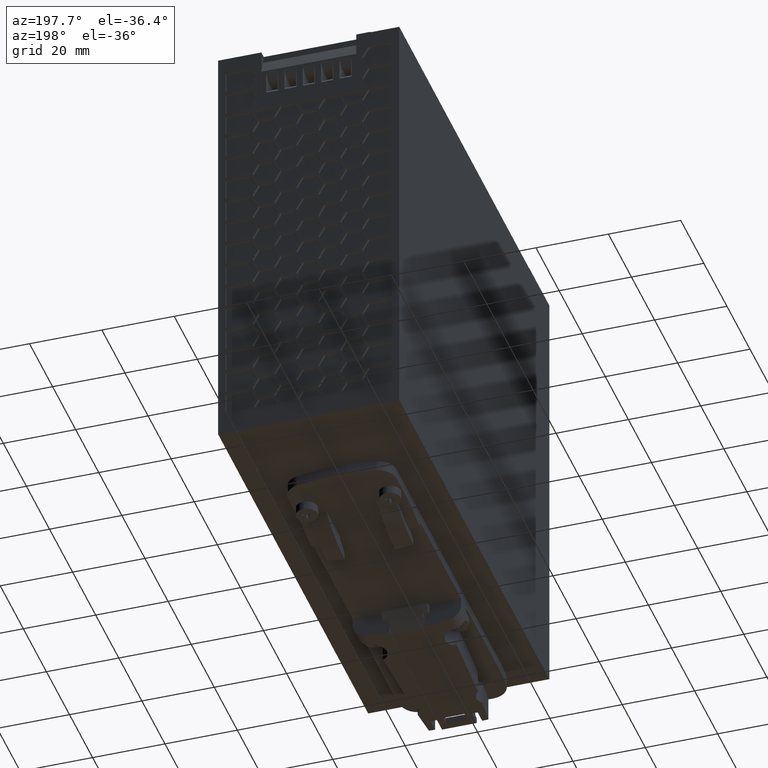
[diagram: clean part render]
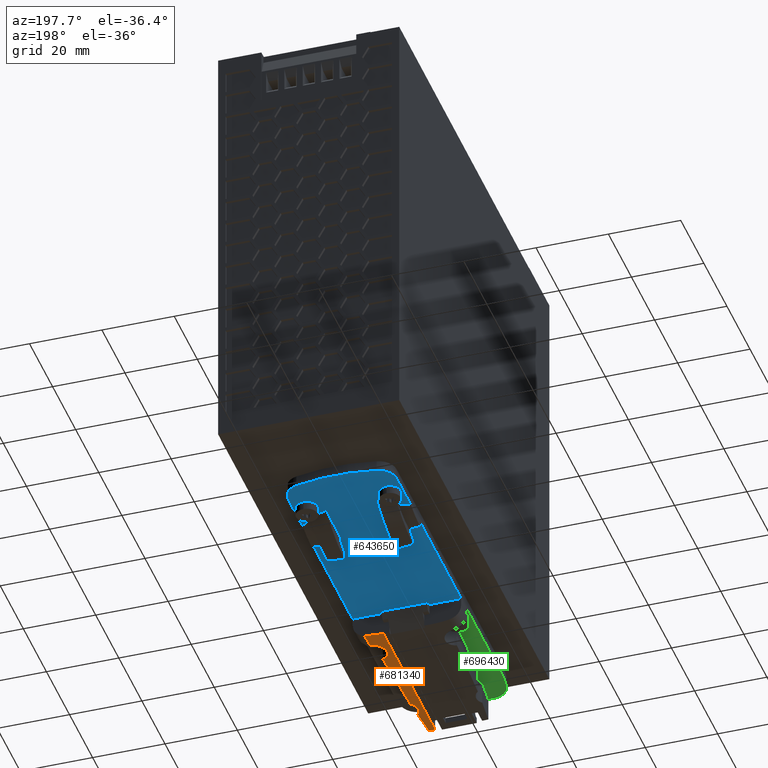
[diagram: same view with three faces highlighted in distinct colors, each labeled with its STEP entity id]
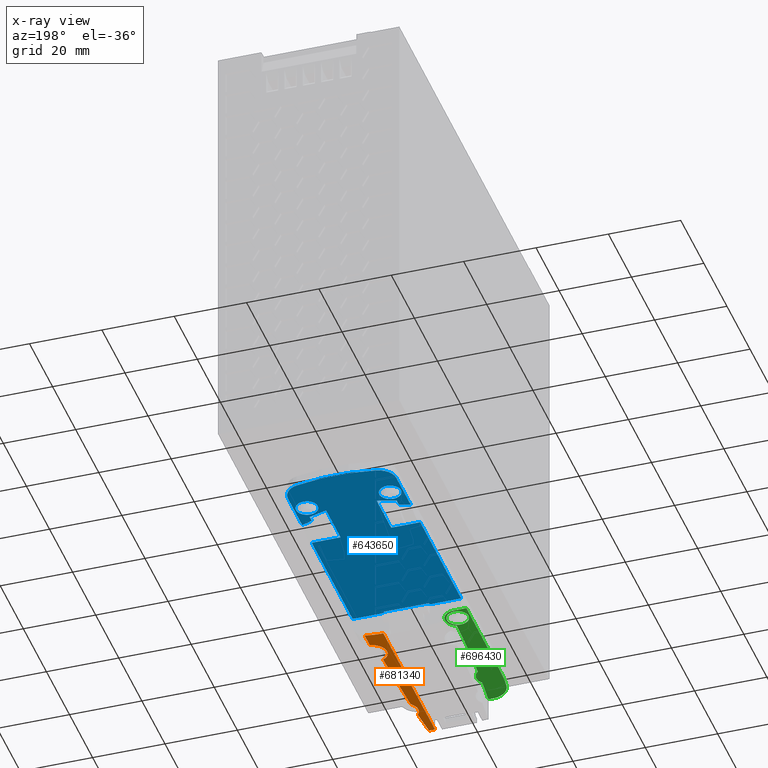
[diagram: x-ray of the same camera — body ghosted, the three highlighted faces saturated]
A machine part, auxiliary view with three faces highlighted in distinct colors.
The next image is the same camera in x-ray (body ghosted, the three faces saturated) — at least one of them is partly hidden behind the body in this view.
Their STEP definitions:

[orange] entity #681340 — the highlighted cylindrical surface (partial cylindrical patch) has radius 30 mm, axis along (0, -1, -0).
#637570=CARTESIAN_POINT('',(17.4426424999718,-9.69999999999984,
125.101093237187));
#637580=VERTEX_POINT('',#637570);
#670780=CARTESIAN_POINT('',(17.4420795676832,-9.69999999999984,
84.1510932410561));
#670790=VERTEX_POINT('',#670780);
#670820=CARTESIAN_POINT('',(17.4420795676832,20.3000000000002,
84.1510932410561));
#670830=DIRECTION('',(1.37468202359202E-5,1.32377063662335E-39,
0.999999999905512));
#670840=DIRECTION('',(0.999999999905512,-9.09881806515498E-45,
-1.37468202359202E-5));
#670850=AXIS2_PLACEMENT_3D('',#670820,#670830,#670840);
#670860=CIRCLE('',#670850,30.);
#670870=CARTESIAN_POINT('',(22.6343872595002,-9.24724929377342,
84.1510218633357));
#670880=VERTEX_POINT('',#670870);
#670890=EDGE_CURVE('',#670790,#670880,#670860,.T.);
#679150=CARTESIAN_POINT('',(19.1591798734071,-9.65085447025208,
129.001069640625));
#679160=VERTEX_POINT('',#679150);
#679190=CARTESIAN_POINT('',(17.4426961125707,20.3000000000002,
129.001093236818));
#679200=DIRECTION('',(1.37468202359202E-5,1.32377063662335E-39,
0.999999999905512));
#679210=DIRECTION('',(0.999999999905512,-9.09881806515498E-45,
-1.37468202359202E-5));
#679220=AXIS2_PLACEMENT_3D('',#679190,#679200,#679210);
#679230=CIRCLE('',#679220,30.);
#679240=CARTESIAN_POINT('',(17.4426961125707,-9.69999999999984,
129.001093236818));
#679250=VERTEX_POINT('',#679240);
#679260=EDGE_CURVE('',#679250,#679160,#679230,.T.);
#679660=CARTESIAN_POINT('',(17.4420795676832,-9.69999999999984,
84.1510932410561));
#679670=DIRECTION('',(1.37468202359202E-5,1.32377063662335E-39,
0.999999999905512));
#679680=VECTOR('',#679670,1.);
#679690=LINE('',#679660,#679680);
#679700=EDGE_CURVE('',#637580,#679250,#679690,.T.);
#680010=CARTESIAN_POINT('',(17.4420795676832,20.3000000000002,
84.1510932410561));
#680020=DIRECTION('',(1.37468202359202E-5,1.32377063662335E-39,
0.999999999905512));
#680030=DIRECTION('',(0.999999999905512,-9.09881806515498E-45,
-1.37468202359202E-5));
#680040=AXIS2_PLACEMENT_3D('',#680010,#680020,#680030);
#680050=CYLINDRICAL_SURFACE('',#680040,30.);
#680060=ORIENTED_EDGE('',*,*,#679260,.F.);
#680070=CARTESIAN_POINT('',(-380.257865407458,-3.0999999999999,
88.156560351086));
#680080=DIRECTION('',(9.09881891095558E-45,-1.,1.32377063662335E-39));
#680090=DIRECTION('',(-1.37468202359202E-5,-1.32377063662335E-39,
-0.999999999905512));
#680100=AXIS2_PLACEMENT_3D('',#680070,#680080,#680090);
#680110=CYLINDRICAL_SURFACE('',#680100,401.5);
#680120=CARTESIAN_POINT('',(19.8545853147473,-9.60288102418704,
121.507374090337));
#680130=CARTESIAN_POINT('',(19.8024870078922,-9.60708401167541,
122.132401755246));
#680140=CARTESIAN_POINT('',(19.7489243543159,-9.61126813362172,
122.757304670079));
#680150=CARTESIAN_POINT('',(19.6938982844759,-9.61540975810916,
123.382072692423));
#680160=CARTESIAN_POINT('',(19.6388722146266,-9.61955138259732,
124.006840714873));
#680170=CARTESIAN_POINT('',(19.5823827285437,-9.62365050926279,
124.631473844656));
#680180=CARTESIAN_POINT('',(19.5244308493157,-9.62768227136417,
125.255961958914));
#680190=CARTESIAN_POINT('',(19.4664789700819,-9.63171403346595,
125.880450073234));
#680200=CARTESIAN_POINT('',(19.407064697719,-9.63567843067104,
126.504793172019));
#680210=CARTESIAN_POINT('',(19.3461891477943,-9.63954936686505,
127.128981150951));
#680220=CARTESIAN_POINT('',(19.2853135978717,-9.64342030305891,
127.753169129863));
#680230=CARTESIAN_POINT('',(19.2229767703834,-9.64719777796471,
128.377201989093));
#680240=CARTESIAN_POINT('',(19.1591798734074,-9.65085447025247,
129.001069640621));
#680250=B_SPLINE_CURVE_WITH_KNOTS('',3,(#680120,#680130,#680140,#680150,
#680160,#680170,#680180,#680190,#680200,#680210,#680220,#680230,#680240)
,.UNSPECIFIED.,.F.,.F.,(4,3,3,3,4),(0.,1.88161596020836,3.76319436599584
,5.64471458201485,7.52615607688707),.UNSPECIFIED.);
#680260=SURFACE_CURVE('',#680250,(#680050,#680110),.CURVE_3D.);
#680270=CARTESIAN_POINT('',(19.8545853147479,-9.60288102418034,
121.507374090338));
#680280=VERTEX_POINT('',#680270);
#680290=EDGE_CURVE('',#680280,#679160,#680260,.T.);
#680300=ORIENTED_EDGE('',*,*,#680290,.T.);
#680310=CARTESIAN_POINT('',(22.442560705919,-3.09999999999985,
119.151024503648));
#680320=DIRECTION('',(9.09881891095558E-45,-1.,1.32377063662335E-39));
#680330=DIRECTION('',(0.999999999905512,-9.09881806515498E-45,
-1.37468202359202E-5));
#680340=AXIS2_PLACEMENT_3D('',#680310,#680320,#680330);
#680350=CYLINDRICAL_SURFACE('',#680340,3.5);
#680360=CARTESIAN_POINT('',(19.8545853147478,-9.60288102418046,
121.507374090338));
#680370=CARTESIAN_POINT('',(19.5349039163021,-9.62866641263549,
121.156268466255));
#680380=CARTESIAN_POINT('',(19.2875432597912,-9.64361997060973,
120.740182141705));
#680390=CARTESIAN_POINT('',(19.1320377359198,-9.65239089170769,
120.286998827789));
#680400=CARTESIAN_POINT('',(18.9776209334816,-9.66110040604948,
119.836988329698));
#680410=CARTESIAN_POINT('',(18.916527937544,-9.66379053106333,
119.358413646764));
#680420=CARTESIAN_POINT('',(18.9527244101105,-9.66196579864018,
118.884486272886));
#680430=CARTESIAN_POINT('',(18.9891727017768,-9.66012837154145,
118.407261783124));
#680440=CARTESIAN_POINT('',(19.1243009426728,-9.65364315802381,
117.940922780012));
#680450=CARTESIAN_POINT('',(19.3453094623561,-9.63959688932203,
117.520983174648));
#680460=CARTESIAN_POINT('',(19.5683226588239,-9.62542321273201,
117.097234470979));
#680470=CARTESIAN_POINT('',(19.8766344348609,-9.60338606044091,
116.723942419828));
#680480=CARTESIAN_POINT('',(20.2456504777323,-9.56875420484563,
116.426398758835));
#680490=B_SPLINE_CURVE_WITH_KNOTS('',3,(#680360,#680370,#680380,#680390,
#680400,#680410,#680420,#680430,#680440,#680450,#680460,#680470,#680480)
,.UNSPECIFIED.,.F.,.F.,(4,3,3,3,4),(0.,1.42905439128157,2.85283973389681
,4.28184927705032,5.71087819009123),.UNSPECIFIED.);
#680500=SURFACE_CURVE('',#680490,(#680050,#680350),.CURVE_3D.);
#680510=CARTESIAN_POINT('',(20.2456504777329,-9.56875420484524,
116.426398758836));
#680520=VERTEX_POINT('',#680510);
#680530=EDGE_CURVE('',#680280,#680520,#680500,.T.);
#680540=ORIENTED_EDGE('',*,*,#680530,.F.);
#680550=CARTESIAN_POINT('',(-380.257865407458,-3.0999999999999,
88.156560351086));
#680560=DIRECTION('',(9.09881891095558E-45,-1.,1.32377063662335E-39));
#680570=DIRECTION('',(-1.37468202359202E-5,-1.32377063662335E-39,
-0.999999999905512));
#680580=AXIS2_PLACEMENT_3D('',#680550,#680560,#680570);
#680590=CYLINDRICAL_SURFACE('',#680580,401.5);
#680600=CARTESIAN_POINT('',(21.1765340989952,-9.46667609516908,
95.4141696608264));
#680610=CARTESIAN_POINT('',(21.1448481860299,-9.47065419017257,
97.1667874859514));
#680620=CARTESIAN_POINT('',(21.1016844967925,-9.47602742559005,
98.9191954383777));
#680630=CARTESIAN_POINT('',(21.0470473730936,-9.48264334216385,
100.671230869743));
#680640=CARTESIAN_POINT('',(20.9924096719774,-9.48925932865614,
102.423284817012));
#680650=CARTESIAN_POINT('',(20.9262957907096,-9.49711826358038,
104.175037623851));
#680660=CARTESIAN_POINT('',(20.8487135173032,-9.50598739389538,
105.926263310735));
#680670=CARTESIAN_POINT('',(20.7711308177536,-9.51485657292667,
107.677498616736));
#680680=CARTESIAN_POINT('',(20.682081957681,-9.52473561714494,
109.42816520607));
#680690=CARTESIAN_POINT('',(20.5815739919311,-9.53531309531287,
111.178155039189));
#680700=CARTESIAN_POINT('',(20.481063988738,-9.54589078790172,
112.928180347156));
#680710=CARTESIAN_POINT('',(20.3690858547188,-9.557167767417,
114.677669185134));
#680720=CARTESIAN_POINT('',(20.2456504777328,-9.56875420484555,
116.426398758839));
#680730=B_SPLINE_CURVE_WITH_KNOTS('',3,(#680600,#680610,#680620,#680630,
#680640,#680650,#680660,#680670,#680680,#680690,#680700,#680710,#680720)
,.UNSPECIFIED.,.F.,.F.,(4,3,3,3,4),(0.,5.25871798684735,10.5175815892292
,15.776382571854,21.035509994096),.UNSPECIFIED.);
#680740=SURFACE_CURVE('',#680730,(#680050,#680590),.CURVE_3D.);
#680750=CARTESIAN_POINT('',(21.1765340989955,-9.4666760951657,
95.4141696608265));
#680760=VERTEX_POINT('',#680750);
#680770=EDGE_CURVE('',#680760,#680520,#680740,.T.);
#680780=ORIENTED_EDGE('',*,*,#680770,.T.);
#680790=CARTESIAN_POINT('',(22.4421895417726,-3.09999999999985,
92.151024506199));
#680800=DIRECTION('',(9.09881891095558E-45,-1.,1.32377063662335E-39));
#680810=DIRECTION('',(0.999999999905512,-9.09881806515498E-45,
-1.37468202359202E-5));
#680820=AXIS2_PLACEMENT_3D('',#680790,#680800,#680810);
#680830=CYLINDRICAL_SURFACE('',#680820,3.5);
#680840=CARTESIAN_POINT('',(21.1765340989956,-9.46667609516569,
95.4141696608265));
#680850=CARTESIAN_POINT('',(20.7922322283521,-9.51488741387449,
95.2651129283795));
#680860=CARTESIAN_POINT('',(20.4383809564112,-9.55164070013351,
95.050409580819));
#680870=CARTESIAN_POINT('',(20.127577527976,-9.57957304238252,
94.7763951896641));
#680880=CARTESIAN_POINT('',(19.8161400152476,-9.60756237068081,
94.5018217692142));
#680890=CARTESIAN_POINT('',(19.5576810508436,-9.62596697810996,
94.176043833834));
#680900=CARTESIAN_POINT('',(19.3613910521861,-9.63854961752515,
93.8119521586155));
#680910=CARTESIAN_POINT('',(18.9799996648336,-9.66299768077819,
93.1045221821276));
#680920=CARTESIAN_POINT('',(18.8541178283766,-9.66712914343472,
92.2866490114067));
#680930=CARTESIAN_POINT('',(19.0034547405954,-9.65934617095079,
91.499025298245));
#680940=CARTESIAN_POINT('',(19.153099005127,-9.65154718022623,
90.7097805660984));
#680950=CARTESIAN_POINT('',(19.5731404873586,-9.63049825796521,
89.9929843477973));
#680960=CARTESIAN_POINT('',(20.183597284804,-9.57447877474151,
89.4773078015415));
#680970=CARTESIAN_POINT('',(20.4996241236471,-9.54547809808283,
89.2103476669985));
#680980=CARTESIAN_POINT('',(20.8629751694179,-9.50683257970101,
89.0010340145082));
#680990=CARTESIAN_POINT('',(21.2462977918575,-9.45782949728181,
88.8616715420909));
#681000=CARTESIAN_POINT('',(21.6309512353785,-9.4086562857564,
88.7218252304599));
#681010=CARTESIAN_POINT('',(22.0366647448211,-9.34893403224273,
88.6510543377072));
#681020=CARTESIAN_POINT('',(22.4419319903835,-9.28043431618564,
88.6510245156674));
#681030=B_SPLINE_CURVE_WITH_KNOTS('',3,(#680840,#680850,#680860,#680870,
#680880,#680890,#680900,#680910,#680920,#680930,#680940,#680950,#680960,
#680970,#680980,#680990,#681000,#681010,#681020),.UNSPECIFIED.,.F.,.F.,(
4,3,3,3,3,3,4),(0.,1.23928390105495,2.4789466967372,4.86560860602107,
7.25439560188893,8.49455414880313,9.72771766417829),.UNSPECIFIED.);
#681040=SURFACE_CURVE('',#681030,(#680050,#680830),.CURVE_3D.);
#681050=CARTESIAN_POINT('',(22.4419319903839,-9.28043431618559,
88.6510245156674));
#681060=VERTEX_POINT('',#681050);
#681070=EDGE_CURVE('',#680760,#681060,#681040,.T.);
#681080=ORIENTED_EDGE('',*,*,#681070,.F.);
#681090=CARTESIAN_POINT('',(17.4421414283742,20.3000000000002,
88.6510932406309));
#681100=DIRECTION('',(1.37468202359202E-5,1.32377063662335E-39,
0.999999999905512));
#681110=DIRECTION('',(0.999999999905512,-9.09881806515498E-45,
-1.37468202359202E-5));
#681120=AXIS2_PLACEMENT_3D('',#681090,#681100,#681110);
#681130=CIRCLE('',#681120,30.);
#681140=CARTESIAN_POINT('',(22.6344491201913,-9.24724929377342,
88.6510218629105));
#681150=VERTEX_POINT('',#681140);
#681160=EDGE_CURVE('',#681060,#681150,#681130,.T.);
#681170=ORIENTED_EDGE('',*,*,#681160,.F.);
#681180=CARTESIAN_POINT('',(22.6343872595002,-9.24724929377342,
84.1510218633357));
#681190=DIRECTION('',(1.37468202359202E-5,1.32377063662335E-39,
0.999999999905512));
#681200=VECTOR('',#681190,1.);
#681210=LINE('',#681180,#681200);
#681220=EDGE_CURVE('',#670880,#681150,#681210,.T.);
#681230=ORIENTED_EDGE('',*,*,#681220,.T.);
#681240=ORIENTED_EDGE('',*,*,#670890,.T.);
#681250=CARTESIAN_POINT('',(17.4420795676832,-9.69999999999984,
84.1510932410561));
#681260=DIRECTION('',(1.37468202359202E-5,1.32377063662335E-39,
0.999999999905512));
#681270=VECTOR('',#681260,1.);
#681280=LINE('',#681250,#681270);
#681290=EDGE_CURVE('',#670790,#637580,#681280,.T.);
#681300=ORIENTED_EDGE('',*,*,#681290,.F.);
#681310=ORIENTED_EDGE('',*,*,#679700,.F.);
#681320=EDGE_LOOP('',(#681310,#681300,#681240,#681230,#681170,#681080,
#680780,#680540,#680300,#680060));
#681330=FACE_OUTER_BOUND('',#681320,.T.);
#681340=ADVANCED_FACE('',(#681330),#680050,.T.);

[blue] entity #643650 — the highlighted planar face has unit normal (0, 0, -1).
#631310=CARTESIAN_POINT('',(25.9418052853024,-3.09999999999985,
64.1986112001693));
#631320=DIRECTION('',(1.37468202359202E-5,1.32377063662335E-39,
0.999999999905512));
#631330=VECTOR('',#631320,1.);
#631340=LINE('',#631310,#631330);
#631350=CARTESIAN_POINT('',(25.9413094037241,-3.09999999999985,
28.1261544614171));
#631360=VERTEX_POINT('',#631350);
#631370=CARTESIAN_POINT('',(25.9414793452855,-3.09999999999985,
40.4883995839968));
#631380=VERTEX_POINT('',#631370);
#631390=EDGE_CURVE('',#631360,#631380,#631340,.T.);
#631460=CARTESIAN_POINT('',(36.3193585013691,-1.70441604344119,
59.4406801922906));
#631470=CARTESIAN_POINT('',(32.8323204957959,-2.66315462780622,
59.4277075588657));
#631480=CARTESIAN_POINT('',(29.3452824902228,-3.62189321217125,
59.4147349254408));
#631490=CARTESIAN_POINT('',(24.8817762359095,-4.84910543662229,
59.3981295915344));
#631500=CARTESIAN_POINT('',(23.9019961303888,-5.05962099943143,
59.3945211057544));
#631510=CARTESIAN_POINT('',(19.3826572457611,-5.83586521223752,
59.378843498032));
#631520=CARTESIAN_POINT('',(15.8051067509578,-6.4503473164804,
59.3664329586376));
#631530=CARTESIAN_POINT('',(12.2275562561544,-7.06482942072328,
59.3540224192431));
#631540=CARTESIAN_POINT('',(36.4066753815092,-2.02158789203813,
55.3586401281275));
#631550=CARTESIAN_POINT('',(32.8755958065553,-2.86380690771618,
55.4690452929722));
#631560=CARTESIAN_POINT('',(29.3445162316014,-3.70602592339425,
55.5794504578168));
#631570=CARTESIAN_POINT('',(24.8819470597037,-4.77042012227036,
55.7189802176525));
#631580=CARTESIAN_POINT('',(23.902810311974,-4.95735439245213,
55.7484782278536));
#631590=CARTESIAN_POINT('',(19.3862509391903,-5.65403637972801,
55.8780881933442));
#631600=CARTESIAN_POINT('',(15.794851770286,-6.20801185167029,
55.9811491926415));
#631610=CARTESIAN_POINT('',(12.2034526013818,-6.76198732361257,
56.0842101919389));
#631620=CARTESIAN_POINT('',(36.4702435057048,-2.35008544179697,
51.2719052513831));
#631630=CARTESIAN_POINT('',(32.9069967393424,-3.0701220382071,
51.508035620788));
#631640=CARTESIAN_POINT('',(29.34374997298,-3.79015863461722,
51.7441659901928));
#631650=CARTESIAN_POINT('',(24.8821178834979,-4.69173480791843,
52.0398308437707));
#631660=CARTESIAN_POINT('',(23.9036244935591,-4.85508778547281,
52.1024353499528));
#631670=CARTESIAN_POINT('',(19.3898446326195,-5.47220754721855,
52.3773328886564));
#631680=CARTESIAN_POINT('',(15.791553959415,-5.96416248329236,
52.5964754432511));
#631690=CARTESIAN_POINT('',(12.1932632862104,-6.45611741936619,
52.8156179978457));
#631700=CARTESIAN_POINT('',(36.5898758105418,-2.96885470264525,
46.2360246331352));
#631710=CARTESIAN_POINT('',(32.9661377644386,-3.45896317019364,
46.0141789739853));
#631720=CARTESIAN_POINT('',(29.3423997183354,-3.94907163774202,
45.7923333148355));
#631730=CARTESIAN_POINT('',(24.8824206336505,-4.55228122041133,
45.519292883312));
#631740=CARTESIAN_POINT('',(23.9051074567425,-4.66881777420783,
45.4614753337804));
#631750=CARTESIAN_POINT('',(19.3967014987251,-5.11477929631874,
45.2075846671564));
#631760=CARTESIAN_POINT('',(15.7713536426015,-5.47339066875367,
45.0034233754479));
#631770=CARTESIAN_POINT('',(12.1460057864779,-5.8320020411886,
44.7992620837394));
#631780=CARTESIAN_POINT('',(36.5465123668367,-2.8222892265708,
44.2378449932929));
#631790=CARTESIAN_POINT('',(32.9367310699919,-3.19199532570333,
43.7282812503561));
#631800=CARTESIAN_POINT('',(29.3269497731472,-3.56170142483587,
43.2187175074193));
#631810=CARTESIAN_POINT('',(24.8871854085029,-4.0164126190445,
42.5919917416829));
#631820=CARTESIAN_POINT('',(23.9129110398295,-4.104183160059,
42.4653135332097));
#631830=CARTESIAN_POINT('',(19.4123664588793,-4.43934325728173,
41.9342681638217));
#631840=CARTESIAN_POINT('',(15.801185877647,-4.70827151983414,
41.5081640132698));
#631850=CARTESIAN_POINT('',(12.1900052964147,-4.97719978238656,
41.0820598627178));
#631860=CARTESIAN_POINT('',(36.235839679127,-1.54931680142654,
39.9898420969367));
#631870=CARTESIAN_POINT('',(32.7659854066738,-1.63722363528622,
38.9343143138453));
#631880=CARTESIAN_POINT('',(29.2961311342206,-1.72513046914591,
37.8787865307539));
#631890=CARTESIAN_POINT('',(24.8966866071618,-1.83658795662179,
36.5404778976375));
#631900=CARTESIAN_POINT('',(23.9283153141583,-1.85819126234517,
36.273976581726));
#631910=CARTESIAN_POINT('',(19.4426421394941,-1.9430079972902,
35.1711188742165));
#631920=CARTESIAN_POINT('',(15.9313601130721,-2.00940059107845,
34.3078271685364));
#631930=CARTESIAN_POINT('',(12.4200780866502,-2.07579318486669,
33.4445354628563));
#631940=CARTESIAN_POINT('',(36.3636606241177,-0.225557747270857,
36.0057067595766));
#631950=CARTESIAN_POINT('',(32.8210815794036,-0.336535036818349,
35.0967178210701));
#631960=CARTESIAN_POINT('',(29.2785025346895,-0.447512326365834,
34.1877288825636));
#631970=CARTESIAN_POINT('',(24.9021436052627,-0.584609183188102,
33.0648006973142));
#631980=CARTESIAN_POINT('',(23.9368589602794,-0.612500647171688,
32.8400860393378));
#631990=CARTESIAN_POINT('',(19.4580113366154,-0.734077769296187,
31.9022070324896));
#632000=CARTESIAN_POINT('',(15.9033243317519,-0.830568798332601,
31.1578489748135));
#632010=CARTESIAN_POINT('',(12.3486373268885,-0.927059827369016,
30.4134909171374));
#632020=CARTESIAN_POINT('',(36.4738787075001,1.099745943859,
32.0004008791571));
#632030=CARTESIAN_POINT('',(32.8673763213292,0.96492588013661,
31.2485360567652));
#632040=CARTESIAN_POINT('',(29.2608739351584,0.830105816414216,
30.4966712343733));
#632050=CARTESIAN_POINT('',(24.9076006033635,0.66736959024559,
29.5891234969909));
#632060=CARTESIAN_POINT('',(23.9454026064005,0.633189968001792,
29.4061954969497));
#632070=CARTESIAN_POINT('',(19.4733805337366,0.474852458697837,
28.6332951907627));
#632080=CARTESIAN_POINT('',(15.881486695656,0.347676985329221,
28.0125075912976));
#632090=CARTESIAN_POINT('',(12.2895928575754,0.220501511960611,
27.3917199918326));
#632100=B_SPLINE_SURFACE_WITH_KNOTS('',3,3,((#631460,#631540,#631620,
#631700,#631780,#631860,#631940,#632020),(#631470,#631550,#631630,
#631710,#631790,#631870,#631950,#632030),(#631480,#631560,#631640,
#631720,#631800,#631880,#631960,#632040),(#631490,#631570,#631650,
#631730,#631810,#631890,#631970,#632050),(#631500,#631580,#631660,
#631740,#631820,#631900,#631980,#632060),(#631510,#631590,#631670,
#631750,#631830,#631910,#631990,#632070),(#631520,#631600,#631680,
#631760,#631840,#631920,#632000,#632080),(#631530,#631610,#631690,
#631770,#631850,#631930,#632010,#632090)),.UNSPECIFIED.,.F.,.F.,.F.,(4,2
,2,4),(4,2,2,4),(-1.04425037197643,0.00840241999769925,0.303174667007196
,1.36540567626834),(-0.672680963199468,0.00647129604993427,
0.596721513342289,1.28419559916893),.UNSPECIFIED.);
#632340=CARTESIAN_POINT('',(25.9415915547616,-3.09999999999985,
48.6509763964384));
#632350=VERTEX_POINT('',#632340);
#632380=CARTESIAN_POINT('',(25.94207956688,-3.09999999999985,
84.1509763930841));
#632390=VERTEX_POINT('',#632380);
#632400=EDGE_CURVE('',#632350,#632390,#631340,.T.);
#633400=CARTESIAN_POINT('',(17.9415915555175,-3.09999999999985,
48.6510863710003));
#633410=VERTEX_POINT('',#633400);
#633440=CARTESIAN_POINT('',(35.9415915538168,-3.09999999999985,
48.650838928236));
#633450=DIRECTION('',(0.999999999905512,-9.09881806515498E-45,
-1.37468202359202E-5));
#633460=VECTOR('',#633450,1.);
#633470=LINE('',#633440,#633460);
#633480=EDGE_CURVE('',#633410,#632350,#633470,.T.);
#633650=CARTESIAN_POINT('',(28.3747466823235,-6.07193078061609,
57.3078563919651));
#633660=CARTESIAN_POINT('',(26.5085716220692,-6.48936042862193,
57.3061837966497));
#633670=CARTESIAN_POINT('',(24.6423965618148,-6.90679007662779,
57.3045112013343));
#633680=CARTESIAN_POINT('',(21.2496247253607,-7.66569184507289,
57.3014703642762));
#633690=CARTESIAN_POINT('',(19.6327876048831,-7.91225648277388,
57.300278934589));
#633700=CARTESIAN_POINT('',(16.1941039240052,-8.2731262918686,
57.2978978169979));
#633710=CARTESIAN_POINT('',(14.29229467015,-8.47271008789782,
57.2965809085848));
#633720=CARTESIAN_POINT('',(12.3904854162949,-8.67229388392702,
57.2952640001718));
#633730=CARTESIAN_POINT('',(28.3956373941771,-6.15724139880369,
55.248837512019));
#633740=CARTESIAN_POINT('',(26.5189625505002,-6.54111271368932,
55.2800416398523));
#633750=CARTESIAN_POINT('',(24.6422877068234,-6.92498402857495,
55.3112457676857));
#633760=CARTESIAN_POINT('',(21.2496782322892,-7.61893773305972,
55.3676558698878));
#633770=CARTESIAN_POINT('',(19.6335995504535,-7.85151923842788,
55.3931974125471));
#633780=CARTESIAN_POINT('',(16.1956279601823,-8.19073841994543,
55.4425551720991));
#633790=CARTESIAN_POINT('',(14.2921389865192,-8.37855264549077,
55.4698828996864));
#633800=CARTESIAN_POINT('',(12.3886500128561,-8.56636687103612,
55.4972106272737));
#633810=CARTESIAN_POINT('',(28.4131552705299,-6.24398788001157,
53.1891915156129));
#633820=CARTESIAN_POINT('',(26.527667061181,-6.59358293026684,
53.253585924825));
#633830=CARTESIAN_POINT('',(24.642178851832,-6.94317798052213,
53.3179803340371));
#633840=CARTESIAN_POINT('',(21.2497317392178,-7.57218362104654,
53.4338413754994));
#633850=CARTESIAN_POINT('',(19.6344114960238,-7.79078199408189,
53.4861158905053));
#633860=CARTESIAN_POINT('',(16.1971519963595,-8.10835054802222,
53.5872125272003));
#633870=CARTESIAN_POINT('',(14.2927219212797,-8.28430092508354,
53.6432256025675));
#633880=CARTESIAN_POINT('',(12.3882918462,-8.46025130214486,
53.6992386779347));
#633890=CARTESIAN_POINT('',(28.4487503746589,-6.45036189252249,
49.4194998418295));
#633900=CARTESIAN_POINT('',(26.545344094778,-6.71903220769434,
49.3251773442024));
#633910=CARTESIAN_POINT('',(24.6419378148971,-6.98770252286618,
49.2308548465753));
#633920=CARTESIAN_POINT('',(21.2498526831136,-7.46650339217036,
49.0627614945803));
#633930=CARTESIAN_POINT('',(19.6363270404293,-7.64749050650361,
48.986923489386));
#633940=CARTESIAN_POINT('',(16.2009729384182,-7.90004534760166,
48.8402666694121));
#633950=CARTESIAN_POINT('',(14.2930055098128,-8.0403122302702,
48.7588146771621));
#633960=CARTESIAN_POINT('',(12.3850380812074,-8.18057911293872,
48.6773626849122));
#633970=CARTESIAN_POINT('',(28.4023495782821,-6.04829819696226,
45.294906487934));
#633980=CARTESIAN_POINT('',(26.5166592817929,-6.2131075275444,
44.9570380514177));
#633990=CARTESIAN_POINT('',(24.6309689853036,-6.37791685812655,
44.6191696149013));
#634000=CARTESIAN_POINT('',(21.2606424451914,-6.6724833953534,
44.0152915757675));
#634010=CARTESIAN_POINT('',(19.6524433361679,-6.78591233526711,
43.767097806131));
#634020=CARTESIAN_POINT('',(16.2174617495531,-6.93921185831042,
43.3313502577871));
#634030=CARTESIAN_POINT('',(14.3244506339923,-7.02369490248801,
43.0912107019282));
#634040=CARTESIAN_POINT('',(12.4314395184314,-7.1081779466656,
42.8510711460692));
#634050=CARTESIAN_POINT('',(28.2640579666881,-4.37137928671241,
41.4700288963112));
#634060=CARTESIAN_POINT('',(26.4410323397651,-4.41269459471098,
40.9130370511611));
#634070=CARTESIAN_POINT('',(24.6180067128421,-4.45400990270954,
40.356045206011));
#634080=CARTESIAN_POINT('',(21.2734288589955,-4.529808214108,
39.3341711508412));
#634090=CARTESIAN_POINT('',(19.6704842349988,-4.55892010890649,
38.9214168668433));
#634100=CARTESIAN_POINT('',(16.2347686836153,-4.60628942507581,
38.2045650715458));
#634110=CARTESIAN_POINT('',(14.376567227357,-4.63190904665722,
37.8168568838273));
#634120=CARTESIAN_POINT('',(12.5183657710987,-4.65752866823862,
37.4291486961088));
#634130=CARTESIAN_POINT('',(28.1209033835901,-2.2984814082195,
38.2696376604581));
#634140=CARTESIAN_POINT('',(26.3672939447494,-2.27340280328271,
37.5813191563424));
#634150=CARTESIAN_POINT('',(24.6136845059086,-2.24832419834591,
36.8930006522268));
#634160=CARTESIAN_POINT('',(21.2776344016716,-2.20061489617154,
35.5835500034432));
#634170=CARTESIAN_POINT('',(19.6764113125818,-2.18229146073094,
35.0505313624909));
#634180=CARTESIAN_POINT('',(16.2404189123336,-2.15248573584879,
34.1030004158095));
#634190=CARTESIAN_POINT('',(14.4242498107869,-2.13673126660833,
33.602162163665));
#634200=CARTESIAN_POINT('',(12.6080807092402,-2.12097679736788,
33.1013239115205));
#634210=CARTESIAN_POINT('',(28.1428966562635,-1.17379962331364,
36.5528605319237));
#634220=CARTESIAN_POINT('',(26.3773484075323,-1.17569003400325,
35.8812260920375));
#634230=CARTESIAN_POINT('',(24.611800158801,-1.17758044469284,
35.2095916521514));
#634240=CARTESIAN_POINT('',(21.2794751289599,-1.18114843716324,
33.941937677504));
#634250=CARTESIAN_POINT('',(19.6788992525849,-1.18468186249413,
33.4256950483355));
#634260=CARTESIAN_POINT('',(16.2426069016885,-1.19896955720663,
32.5074821394103));
#634270=CARTESIAN_POINT('',(14.4205437390559,-1.20654547903056,
32.0206079896106));
#634280=CARTESIAN_POINT('',(12.5984805764233,-1.2141214008545,
31.5337338398108));
#634290=CARTESIAN_POINT('',(28.1634221080619,-0.0482856258175648,
34.8348684942089));
#634300=CARTESIAN_POINT('',(26.3866689598777,-0.0775611584286739,
34.1805255731424));
#634310=CARTESIAN_POINT('',(24.6099158116935,-0.106836691039769,
33.526182652076));
#634320=CARTESIAN_POINT('',(21.2813158562482,-0.16168197815494,
32.3003253515649));
#634330=CARTESIAN_POINT('',(19.681387192588,-0.187072264257319,
31.80085873418));
#634340=CARTESIAN_POINT('',(16.2447948910435,-0.24545337856445,
30.9119638630112));
#634350=CARTESIAN_POINT('',(14.4174090680928,-0.276497160093315,
30.4392997402006));
#634360=CARTESIAN_POINT('',(12.5900232451421,-0.307540941622173,
29.9666356173899));
#634370=B_SPLINE_SURFACE_WITH_KNOTS('',3,3,((#633650,#633730,#633810,
#633890,#633970,#634050,#634130,#634210,#634290),(#633660,#633740,
#633820,#633900,#633980,#634060,#634140,#634220,#634300),(#633670,
#633750,#633830,#633910,#633990,#634070,#634150,#634230,#634310),(
#633680,#633760,#633840,#633920,#634000,#634080,#634160,#634240,#634320)
,(#633690,#633770,#633850,#633930,#634010,#634090,#634170,#634250,
#634330),(#633700,#633780,#633860,#633940,#634020,#634100,#634180,
#634260,#634340),(#633710,#633790,#633870,#633950,#634030,#634110,
#634190,#634270,#634350),(#633720,#633800,#633880,#633960,#634040,
#634120,#634200,#634280,#634360)),.UNSPECIFIED.,.F.,.F.,.F.,(4,2,2,4),(4
,2,1,2,4),(-0.530299195767868,0.0083302807718563,0.494384454739451,
1.03935536184108),(-0.34261094403884,2.36588213699451E-9,0.4974044135323
,0.994808800538165,1.33311810925078),.UNSPECIFIED.);
#634530=CARTESIAN_POINT('',(22.9414400437489,-3.10000000000189,
37.6294654799158));
#634540=VERTEX_POINT('',#634530);
#634890=CARTESIAN_POINT('',(22.9414642778592,-3.09999999999985,
39.3923539057522));
#634900=VERTEX_POINT('',#634890);
#634930=CARTESIAN_POINT('',(22.9418052855859,-3.09999999999985,
64.19865244063));
#634940=DIRECTION('',(-1.37468202359202E-5,-1.32377063662335E-39,
-0.999999999905512));
#634950=VECTOR('',#634940,1.);
#634960=LINE('',#634930,#634950);
#634970=EDGE_CURVE('',#634900,#634540,#634960,.T.);
#635100=CARTESIAN_POINT('',(5.71649123326192,-3.09999999999985,
41.3533186847772));
#635110=DIRECTION('',(9.09881891095558E-45,-1.,1.32377063662335E-39));
#635120=DIRECTION('',(-0.999999999905512,9.09881806515498E-45,
1.37468202359202E-5));
#635130=AXIS2_PLACEMENT_3D('',#635100,#635110,#635120);
#635140=PLANE('',#635130);
#635150=CARTESIAN_POINT('',(17.9414191873363,-3.09999999999985,
36.1123189837089));
#635160=CARTESIAN_POINT('',(18.3639489206056,-3.09999999999985,
36.2178843019423));
#635170=CARTESIAN_POINT('',(18.7854280869795,-3.09999999999985,
36.3271118622867));
#635180=CARTESIAN_POINT('',(19.2055405880197,-3.09999999999985,
36.442770458032));
#635190=CARTESIAN_POINT('',(19.6255560077205,-3.09999999999985,
36.5584023269093));
#635200=CARTESIAN_POINT('',(20.0441334306676,-3.09999999999985,
36.6795381214909));
#635210=CARTESIAN_POINT('',(20.4610695509796,-3.09999999999985,
36.8060914559919));
#635220=CARTESIAN_POINT('',(20.8780056687605,-3.09999999999985,
36.9326447897246));
#635230=CARTESIAN_POINT('',(21.2932996565662,-3.09999999999985,
37.0646153880444));
#635240=CARTESIAN_POINT('',(21.7067547332634,-3.09999999999985,
37.201895298422));
#635250=CARTESIAN_POINT('',(22.1202841848039,-3.09999999999985,
37.3391999035547));
#635260=CARTESIAN_POINT('',(22.5315330760438,-3.09999999999985,
37.4823669650691));
#635270=CARTESIAN_POINT('',(22.9414400437489,-3.09999999999985,
37.6294654799125));
#635280=B_SPLINE_CURVE_WITH_KNOTS('',3,(#635150,#635160,#635170,#635180,
#635190,#635200,#635210,#635220,#635230,#635240,#635250,#635260,#635270)
,.UNSPECIFIED.,.F.,.F.,(4,3,3,3,4),(0.,1.30662994483356,2.613707486062,
3.92079877700267,5.22745320657135),.UNSPECIFIED.);
#635290=SURFACE_CURVE('',#635280,(#635140,#634370),.CURVE_3D.);
#635300=CARTESIAN_POINT('',(17.9414191873362,-3.10000000000198,
36.1123189837126));
#635310=VERTEX_POINT('',#635300);
#635320=EDGE_CURVE('',#635310,#634540,#635290,.T.);
#635900=CARTESIAN_POINT('',(17.9418052860583,-3.09999999999985,
64.1987211747312));
#635910=DIRECTION('',(-1.37468202359202E-5,-1.32377063662335E-39,
-0.999999999905512));
#635920=VECTOR('',#635910,1.);
#635930=LINE('',#635900,#635920);
#635940=EDGE_CURVE('',#633410,#635310,#635930,.T.);
#638800=CARTESIAN_POINT('',(4.6420795688926,-3.09999999999985,
84.1512692003551));
#638810=VERTEX_POINT('',#638800);
#638840=CARTESIAN_POINT('',(35.9420795659351,-3.09999999999985,
84.1508389248818));
#638850=DIRECTION('',(0.999999999905512,-9.09881806515498E-45,
-1.37468202359202E-5));
#638860=VECTOR('',#638850,1.);
#638870=LINE('',#638840,#638860);
#638880=CARTESIAN_POINT('',(-4.05792043028536,-3.09999999999985,
84.1513887976912));
#638890=VERTEX_POINT('',#638880);
#638900=EDGE_CURVE('',#638890,#638810,#638870,.T.);
#640380=CARTESIAN_POINT('',(22.4413846329339,-3.09999999999985,
33.5986593169315));
#640390=DIRECTION('',(9.09881891095558E-45,-1.,1.32377063662335E-39));
#640400=DIRECTION('',(1.37468202359202E-5,1.32377063662335E-39,
0.999999999905512));
#640410=AXIS2_PLACEMENT_3D('',#640380,#640390,#640400);
#640420=CIRCLE('',#640410,3.);
#640430=CARTESIAN_POINT('',(22.4414258733946,-3.09999999999985,
36.598659316648));
#640440=VERTEX_POINT('',#640430);
#640450=CARTESIAN_POINT('',(22.4413433924732,-3.09999999999985,
30.5986593172149));
#640460=VERTEX_POINT('',#640450);
#640470=EDGE_CURVE('',#640440,#640460,#640420,.T.);
#640480=ORIENTED_EDGE('',*,*,#640470,.F.);
#640490=EDGE_CURVE('',#640460,#640440,#640420,.T.);
#640500=ORIENTED_EDGE('',*,*,#640490,.F.);
#640510=EDGE_LOOP('',(#640500,#640480));
#640520=FACE_BOUND('',#640510,.T.);
#640530=CARTESIAN_POINT('',(-0.5586153648929,-3.09999999999985,
33.5989754937969));
#640540=DIRECTION('',(9.09881891095558E-45,-1.,1.32377063662335E-39));
#640550=DIRECTION('',(1.37468202359202E-5,1.32377063662335E-39,
0.999999999905512));
#640560=AXIS2_PLACEMENT_3D('',#640530,#640540,#640550);
#640570=CIRCLE('',#640560,3.);
#640580=CARTESIAN_POINT('',(-0.558574124432192,-3.09999999999985,
36.5989754935134));
#640590=VERTEX_POINT('',#640580);
#640600=CARTESIAN_POINT('',(-0.558656605353608,-3.09999999999985,
30.5989754940804));
#640610=VERTEX_POINT('',#640600);
#640620=EDGE_CURVE('',#640590,#640610,#640570,.T.);
#640630=ORIENTED_EDGE('',*,*,#640620,.F.);
#640640=EDGE_CURVE('',#640610,#640590,#640570,.T.);
#640650=ORIENTED_EDGE('',*,*,#640640,.F.);
#640660=EDGE_LOOP('',(#640650,#640630));
#640670=FACE_BOUND('',#640660,.T.);
#640680=ORIENTED_EDGE('',*,*,#632400,.T.);
#640690=ORIENTED_EDGE('',*,*,#633480,.T.);
#640700=ORIENTED_EDGE('',*,*,#635940,.F.);
#640710=ORIENTED_EDGE('',*,*,#635320,.F.);
#640720=ORIENTED_EDGE('',*,*,#634970,.T.);
#640730=CARTESIAN_POINT('',(22.9414642778591,-3.09999999999972,
39.3923539057518));
#640740=CARTESIAN_POINT('',(23.1956543468472,-3.09999999999972,
39.4714167339499));
#640750=CARTESIAN_POINT('',(23.4489318748177,-3.09999999999985,
39.5533458648673));
#640760=CARTESIAN_POINT('',(23.701247900239,-3.09999999999985,
39.6384776822348));
#640770=CARTESIAN_POINT('',(23.953548879972,-3.09999999999985,
39.7236044231638));
#640780=CARTESIAN_POINT('',(24.2048515266659,-3.09999999999985,
39.8118383076784));
#640790=CARTESIAN_POINT('',(24.4550262518065,-3.09999999999985,
39.9031706071419));
#640800=CARTESIAN_POINT('',(24.7052009573379,-3.09999999999985,
39.9945028994466));
#640810=CARTESIAN_POINT('',(24.9542487826775,-3.09999999999985,
40.0889334015044));
#640820=CARTESIAN_POINT('',(25.2020320829403,-3.09999999999985,
40.1864763463618));
#640830=CARTESIAN_POINT('',(25.449864014918,-3.09999999999985,
40.2840384356921));
#640840=CARTESIAN_POINT('',(25.6961072434112,-3.09999999999985,
40.3850909936242));
#640850=CARTESIAN_POINT('',(25.9414793452858,-3.09999999999985,
40.4883995839969));
#640860=B_SPLINE_CURVE_WITH_KNOTS('',3,(#640730,#640740,#640750,#640760,
#640770,#640780,#640790,#640800,#640810,#640820,#640830,#640840,#640850)
,.UNSPECIFIED.,.F.,.F.,(4,3,3,3,4),(0.,0.79867284579133,1.59759488273893
,2.39653985817606,3.19526958822689),.UNSPECIFIED.);
#640870=SURFACE_CURVE('',#640860,(#635140,#632100),.CURVE_3D.);
#640880=EDGE_CURVE('',#634900,#631380,#640870,.T.);
#640890=ORIENTED_EDGE('',*,*,#640880,.F.);
#640900=ORIENTED_EDGE('',*,*,#631390,.T.);
#640910=CARTESIAN_POINT('',(20.9413094041965,-3.09999999999985,
28.1262231955183));
#640920=DIRECTION('',(9.09881891095558E-45,-1.,1.32377063662335E-39));
#640930=DIRECTION('',(1.37468202359202E-5,1.32377063662335E-39,
0.999999999905512));
#640940=AXIS2_PLACEMENT_3D('',#640910,#640920,#640930);
#640950=CIRCLE('',#640940,5.);
#640960=CARTESIAN_POINT('',(22.052353499726,-3.09999999999985,
23.2512277065164));
#640970=VERTEX_POINT('',#640960);
#640980=EDGE_CURVE('',#640970,#631360,#640950,.T.);
#640990=ORIENTED_EDGE('',*,*,#640980,.T.);
#641000=CARTESIAN_POINT('',(10.9419125444315,-3.09999999999985,
72.0011825965357));
#641010=DIRECTION('',(9.09881891095558E-45,-1.,1.32377063662335E-39));
#641020=DIRECTION('',(-0.999999999905512,9.09881806515498E-45,
1.37468202359202E-5));
#641030=AXIS2_PLACEMENT_3D('',#641000,#641010,#641020);
#641040=CIRCLE('',#641030,50.);
#641050=CARTESIAN_POINT('',(-0.169868720396513,-3.09999999999985,
23.2515331914105));
#641060=VERTEX_POINT('',#641050);
#641070=EDGE_CURVE('',#641060,#640970,#641040,.T.);
#641080=ORIENTED_EDGE('',*,*,#641070,.T.);
#641090=CARTESIAN_POINT('',(0.941309406086289,-3.09999999999985,
28.126498131923));
#641100=DIRECTION('',(9.09881891095558E-45,-1.,1.32377063662335E-39));
#641110=DIRECTION('',(1.37468202359202E-5,1.32377063662335E-39,
0.999999999905512));
#641120=AXIS2_PLACEMENT_3D('',#641090,#641100,#641110);
#641130=CIRCLE('',#641120,5.);
#641140=CARTESIAN_POINT('',(-4.05869059344128,-3.09999999999985,
28.1265668660242));
#641150=VERTEX_POINT('',#641140);
#641160=EDGE_CURVE('',#641150,#641060,#641130,.T.);
#641170=ORIENTED_EDGE('',*,*,#641160,.T.);
#641180=CARTESIAN_POINT('',(-4.05819471186297,-3.09999999999985,
64.1990236047764));
#641190=DIRECTION('',(1.37468202359202E-5,1.32377063662335E-39,
0.999999999905512));
#641200=VECTOR('',#641190,1.);
#641210=LINE('',#641180,#641200);
#641220=CARTESIAN_POINT('',(-4.05852065187985,-3.09999999999984,
40.4888119886038));
#641230=VERTEX_POINT('',#641220);
#641240=EDGE_CURVE('',#641150,#641230,#641210,.T.);
#641250=ORIENTED_EDGE('',*,*,#641240,.F.);
#641260=CARTESIAN_POINT('',(-14.435878736852,-1.70441604344119,
59.441377915413));
#641270=CARTESIAN_POINT('',(-10.9488410892616,-2.66315462780622,
59.4283094106238));
#641280=CARTESIAN_POINT('',(-7.46180344167133,-3.62189321217125,
59.4152409058346));
#641290=CARTESIAN_POINT('',(-2.99829764558614,-4.84910543662229,
59.3985128538982));
#641300=CARTESIAN_POINT('',(-2.01851763964613,-5.05962099943143,
59.3948774303977));
#641310=CARTESIAN_POINT('',(2.50082081223894,-5.83586521223752,
59.3790755696027));
#641320=CARTESIAN_POINT('',(6.07837096447924,-6.4503473164804,
59.3665666703259));
#641330=CARTESIAN_POINT('',(9.65592111671955,-7.06482942072328,
59.3540577710491));
#641340=CARTESIAN_POINT('',(-14.523307847101,-2.02158789203813,
55.3593402534516));
#641350=CARTESIAN_POINT('',(-10.9922252380418,-2.86380690771618,
55.4696483360223));
#641360=CARTESIAN_POINT('',(-7.4611426289825,-3.70602592339425,
55.5799564185929));
#641370=CARTESIAN_POINT('',(-2.99856962259037,-4.77042012227036,
55.7193634861035));
#641380=CARTESIAN_POINT('',(-2.01943206422302,-4.95735439245213,
55.7488345762597));
#641390=CARTESIAN_POINT('',(2.4971308703034,-5.65403637972801,
55.8783203650418));
#641400=CARTESIAN_POINT('',(6.08853287137235,-6.20801185167029,
55.9812826236626));
#641410=CARTESIAN_POINT('',(9.6799348724413,-6.76198732361257,
56.0842448822834));
#641420=CARTESIAN_POINT('',(-14.586988330492,-2.35008544179697,
51.2726071259709));
#641430=CARTESIAN_POINT('',(-11.0237350733928,-3.0701220382071,
51.5086395286611));
#641440=CARTESIAN_POINT('',(-7.46048181629368,-3.79015863461722,
51.7446719313512));
#641450=CARTESIAN_POINT('',(-2.9988415995946,-4.69173480791843,
52.0402141183087));
#641460=CARTESIAN_POINT('',(-2.02034648879991,-4.85508778547281,
52.1027917221217));
#641470=CARTESIAN_POINT('',(2.49344092836786,-5.47220754721855,
52.3775651604808));
#641480=CARTESIAN_POINT('',(6.09173762523901,-5.96416248329236,
52.5966087848825));
#641490=CARTESIAN_POINT('',(9.69003432211015,-6.45611741936619,
52.8156524092843));
#641500=CARTESIAN_POINT('',(-14.7067590899749,-2.96885470264525,
46.2367297987539));
#641510=CARTESIAN_POINT('',(-11.0830271445861,-3.45896317019364,
46.0147845099369));
#641520=CARTESIAN_POINT('',(-7.45929519919732,-3.94907163774202,
45.79283922112));
#641530=CARTESIAN_POINT('',(-2.99932362307346,-4.55228122041133,
45.5196761686382));
#641540=CARTESIAN_POINT('',(-2.02201203614981,-4.66881777420783,
45.4618317492313));
#641550=CARTESIAN_POINT('',(2.48638693978495,-5.11477929631874,
45.2078171302108));
#641560=CARTESIAN_POINT('',(6.11172918140122,-5.47339066875367,
45.0035561645689));
#641570=CARTESIAN_POINT('',(9.73707142301749,-5.8320020411886,
44.799295198927));
#641580=CARTESIAN_POINT('',(-14.6634505835188,-2.8222892265708,
44.2385489674479));
#641590=CARTESIAN_POINT('',(-11.0536832978007,-3.19199532570333,
43.7288859786745));
#641600=CARTESIAN_POINT('',(-7.44391601208258,-3.56170142483587,
43.2192229899012));
#641610=CARTESIAN_POINT('',(-3.00416888008918,-4.0164126190445,
42.5923751591165));
#641620=CARTESIAN_POINT('',(-2.02989799462918,-4.104183160059,
42.4656701643419));
#641630=CARTESIAN_POINT('',(2.47063198424956,-4.43934325728173,
41.9345010588));
#641640=CARTESIAN_POINT('',(6.08180084896274,-4.70827151983414,
41.5082976239086));
#641650=CARTESIAN_POINT('',(9.69296971367591,-4.97719978238656,
41.0820941890171));
#641660=CARTESIAN_POINT('',(-14.3528946889908,-1.54931680142654,
39.9905375311741));
#641670=CARTESIAN_POINT('',(-10.8830694381504,-1.63722363528622,
38.9349143495558));
#641680=CARTESIAN_POINT('',(-7.41324418731005,-1.72513046914591,
37.8792911679375));
#641690=CARTESIAN_POINT('',(-3.01383645689041,-1.83658795662179,
36.5408615785808));
#641700=CARTESIAN_POINT('',(-2.04547249134433,-1.85819126234517,
36.2743336387178));
#641710=CARTESIAN_POINT('',(2.44017036005122,-1.9430079972902,
35.1713526041396));
#641720=CARTESIAN_POINT('',(5.95142865011433,-2.00940059107845,
34.3079643608602));
#641730=CARTESIAN_POINT('',(9.46268694017745,-2.07579318486669,
33.4445761175808));
#641740=CARTESIAN_POINT('',(-14.4808251723178,-0.225557747270857,
36.0064057095829));
#641750=CARTESIAN_POINT('',(-10.9382711203577,-0.336535036818349,
35.0973193730254));
#641760=CARTESIAN_POINT('',(-7.39571706839754,-0.447512326365834,
34.1882330364678));
#641770=CARTESIAN_POINT('',(-3.01938901400856,-0.584609183188102,
33.0651845296039));
#641780=CARTESIAN_POINT('',(-2.05411054761418,-0.612500647171688,
32.8404433325235));
#641790=CARTESIAN_POINT('',(2.42471128864888,-0.734077769296187,
31.9024411862034));
#641800=CARTESIAN_POINT('',(5.97937782705599,-0.830568798332601,
31.1579853975221));
#641810=CARTESIAN_POINT('',(9.53404436546311,-0.927059827369016,
30.4135296088408));
#641820=CARTESIAN_POINT('',(-14.5911533760984,1.099745943859,
32.0011028609736));
#641830=CARTESIAN_POINT('',(-10.9846716627917,0.96492588013661,
31.2491388829859));
#641840=CARTESIAN_POINT('',(-7.37818994948505,0.830105816414216,
30.4971749049982));
#641850=CARTESIAN_POINT('',(-3.02494157112672,0.66736959024559,
29.589507480627));
#641860=CARTESIAN_POINT('',(-2.06274860388405,0.633189968001792,
29.4065530263291));
#641870=CARTESIAN_POINT('',(2.40925221724653,0.474852458697837,
28.6335297682672));
#641880=CARTESIAN_POINT('',(6.0011289862585,0.347676985329221,
28.0126434147989));
#641890=CARTESIAN_POINT('',(9.59300575527047,0.220501511960611,
27.3917570613307));
#641900=B_SPLINE_SURFACE_WITH_KNOTS('',3,3,((#641260,#641340,#641420,
#641500,#641580,#641660,#641740,#641820),(#641270,#641350,#641430,
#641510,#641590,#641670,#641750,#641830),(#641280,#641360,#641440,
#641520,#641600,#641680,#641760,#641840),(#641290,#641370,#641450,
#641530,#641610,#641690,#641770,#641850),(#641300,#641380,#641460,
#641540,#641620,#641700,#641780,#641860),(#641310,#641390,#641470,
#641550,#641630,#641710,#641790,#641870),(#641320,#641400,#641480,
#641560,#641640,#641720,#641800,#641880),(#641330,#641410,#641490,
#641570,#641650,#641730,#641810,#641890)),.UNSPECIFIED.,.F.,.F.,.F.,(4,2
,2,4),(4,2,2,4),(-1.04425037197643,0.00840241999769925,0.303174667007196
,1.36540567626834),(-0.672680963199468,0.00647129604993427,
0.596721513342289,1.28419559916893),.UNSPECIFIED.);
#641910=CARTESIAN_POINT('',(-1.05853571987303,-3.09999999999972,
39.3926838294375));
#641920=CARTESIAN_POINT('',(-1.31272361504022,-3.09999999999972,
39.471753646216));
#641930=CARTESIAN_POINT('',(-1.56599889038485,-3.09999999999985,
39.5536897406237));
#641940=CARTESIAN_POINT('',(-1.81831257512721,-3.09999999999985,
39.6388284950452));
#641950=CARTESIAN_POINT('',(-2.07061121432086,-3.09999999999985,
39.7239621726145));
#641960=CARTESIAN_POINT('',(-2.32191143504908,-3.09999999999984,
39.8122029663203));
#641970=CARTESIAN_POINT('',(-2.57208364903768,-3.09999999999984,
39.9035421439632));
#641980=CARTESIAN_POINT('',(-2.82225584341731,-3.09999999999984,
39.9948813144468));
#641990=CARTESIAN_POINT('',(-3.0713010724245,-3.09999999999985,
40.0893186637003));
#642000=CARTESIAN_POINT('',(-3.31908169078301,-3.09999999999985,
40.1868684209858));
#642010=CARTESIAN_POINT('',(-3.56691094033007,-3.09999999999985,
40.2844373240813));
#642020=CARTESIAN_POINT('',(-3.81315139042748,-3.09999999999985,
40.3854966520979));
#642030=CARTESIAN_POINT('',(-4.05852065188007,-3.09999999999985,
40.488811988604));
#642040=B_SPLINE_CURVE_WITH_KNOTS('',3,(#641910,#641920,#641930,#641940,
#641950,#641960,#641970,#641980,#641990,#642000,#642010,#642020,#642030)
,.UNSPECIFIED.,.F.,.F.,(4,3,3,3,4),(0.,0.798672845791317,
1.59759488273849,2.39653985817562,3.19526958822683),.UNSPECIFIED.);
#642050=SURFACE_CURVE('',#642040,(#635140,#641900),.CURVE_3D.);
#642060=CARTESIAN_POINT('',(-1.05853571987315,-3.09999999999985,
39.3926838294374));
#642070=VERTEX_POINT('',#642060);
#642080=EDGE_CURVE('',#642070,#641230,#642050,.T.);
#642090=ORIENTED_EDGE('',*,*,#642080,.T.);
#642100=CARTESIAN_POINT('',(-1.05819471214644,-3.09999999999985,
64.1989823643157));
#642110=DIRECTION('',(-1.37468202359202E-5,-1.32377063662335E-39,
-0.999999999905512));
#642120=VECTOR('',#642110,1.);
#642130=LINE('',#642100,#642120);
#642140=CARTESIAN_POINT('',(-1.05855995398343,-3.09999999999985,
37.6297954035982));
#642150=VERTEX_POINT('',#642140);
#642160=EDGE_CURVE('',#642070,#642150,#642130,.T.);
#642170=ORIENTED_EDGE('',*,*,#642160,.F.);
#642180=CARTESIAN_POINT('',(-6.49132555989981,-6.07193078061609,
57.3083356895926));
#642190=CARTESIAN_POINT('',(-4.62515054633653,-6.48936042862193,
57.3066117863317));
#642200=CARTESIAN_POINT('',(-2.75897553277325,-6.90679007662779,
57.3048878830707));
#642210=CARTESIAN_POINT('',(0.633796218794895,-7.66569184507289,
57.3017537663648));
#642220=CARTESIAN_POINT('',(2.2506333059047,-7.91225648277388,
57.3005178839395));
#642230=CARTESIAN_POINT('',(5.68931692001739,-8.2731262918686,
57.2980422244165));
#642240=CARTESIAN_POINT('',(7.59112613694713,-8.47271008789782,
57.296673028344));
#642250=CARTESIAN_POINT('',(9.49293535387687,-8.67229388392702,
57.2953038322716));
#642260=CARTESIAN_POINT('',(-6.51227288167027,-6.15724139880369,
55.2493173847864));
#642270=CARTESIAN_POINT('',(-4.63559718078767,-6.54111271368932,
55.2804699159845));
#642280=CARTESIAN_POINT('',(-2.75892147990507,-6.92498402857495,
55.3116224471827));
#642290=CARTESIAN_POINT('',(0.633689544265955,-7.61893773305972,
55.3679392741783));
#642300=CARTESIAN_POINT('',(2.24976892772092,-7.85151923842788,
55.3934363849417));
#642310=CARTESIAN_POINT('',(5.68774187371719,-8.19073841994543,
55.4426996221202));
#642320=CARTESIAN_POINT('',(7.59123159799959,-8.37855264549077,
55.4699750158557));
#642330=CARTESIAN_POINT('',(9.49472132228199,-8.56636687103612,
55.4972504095912));
#642340=CARTESIAN_POINT('',(-6.52984738518304,-6.24398788001157,
53.189671870789));
#642350=CARTESIAN_POINT('',(-4.64435740610996,-6.59358293026684,
53.2540144410418));
#642360=CARTESIAN_POINT('',(-2.75886742703688,-6.94317798052213,
53.3183570112946));
#642370=CARTESIAN_POINT('',(0.633582869737015,-7.57218362104654,
53.4341247819919));
#642380=CARTESIAN_POINT('',(2.24890454953714,-7.79078199408189,
53.486354885944));
#642390=CARTESIAN_POINT('',(5.68616682741699,-8.10835054802222,
53.5873570198239));
#642400=CARTESIAN_POINT('',(7.59059844178028,-8.28430092508354,
53.6433177354541));
#642410=CARTESIAN_POINT('',(9.49503005614358,-8.46025130214486,
53.6992784510844));
#642420=CARTESIAN_POINT('',(-6.56554613184613,-6.45036189252249,
49.4199811770693));
#642430=CARTESIAN_POINT('',(-4.66214244595344,-6.71903220769434,
49.3256063479099));
#642440=CARTESIAN_POINT('',(-2.75873876006076,-6.98770252286618,
49.2312315187506));
#642450=CARTESIAN_POINT('',(0.633341748942538,-7.46650339217036,
49.06304490605));
#642460=CARTESIAN_POINT('',(2.24686530595412,-7.64749050650361,
48.9871625391905));
#642470=CARTESIAN_POINT('',(5.68221537453696,-7.90004534760166,
48.8404112688815));
#642480=CARTESIAN_POINT('',(7.59018056300943,-8.0403122302702,
48.7589068196918));
#642490=CARTESIAN_POINT('',(9.49814575148189,-8.18057911293872,
48.6774023705021));
#642500=CARTESIAN_POINT('',(-6.51925873557357,-6.04829819696226,
45.2953865490059));
#642510=CARTESIAN_POINT('',(-4.63357772903037,-6.2131075275444,
44.9574662681262));
#642520=CARTESIAN_POINT('',(-2.74789672248717,-6.37791685812655,
44.6195459872464));
#642530=CARTESIAN_POINT('',(0.622413213545544,-6.6724833953534,
44.0155752857948));
#642540=CARTESIAN_POINT('',(2.230605498211,-6.78591233526711,
43.767337301004));
#642550=CARTESIAN_POINT('',(5.66557510324105,-6.93921185831042,
43.331495312676));
#642560=CARTESIAN_POINT('',(7.55857961577583,-7.02369490248801,
43.0913037111408));
#642570=CARTESIAN_POINT('',(9.45158412831061,-7.1081779466656,
42.8511121096056));
#642580=CARTESIAN_POINT('',(-6.38107228384125,-4.37137928671241,
41.4705051566889));
#642590=CARTESIAN_POINT('',(-4.55806197134078,-4.41269459471098,
40.9134631901381));
#642600=CARTESIAN_POINT('',(-2.7350516588403,-4.45400990270954,
40.3564212235874));
#642610=CARTESIAN_POINT('',(0.609498098704297,-4.529808214108,
39.3344552141828));
#642620=CARTESIAN_POINT('',(2.21243137397733,-4.55892010890649,
38.9216568595577));
#642630=CARTESIAN_POINT('',(5.64812721519678,-4.60628942507581,
38.204710604203));
#642640=CARTESIAN_POINT('',(7.50631801124323,-4.63190904665722,
37.8169513279083));
#642650=CARTESIAN_POINT('',(9.36450880728968,-4.65752866823862,
37.4291920516136));
#642660=CARTESIAN_POINT('',(-6.23800569120336,-2.2984814082195,
38.2701099862047));
#642670=CARTESIAN_POINT('',(-4.48441517740683,-2.27340280328271,
37.5817432692418));
#642680=CARTESIAN_POINT('',(-2.73082466361029,-2.24832419834591,
36.8933765522788));
#642690=CARTESIAN_POINT('',(0.605189437800496,-2.20061489617154,
35.5838341838279));
#642700=CARTESIAN_POINT('',(2.20639787166219,-2.18229146073094,
35.0507715196252));
#642710=CARTESIAN_POINT('',(5.6423642195366,-2.15248573584879,
34.1031461053622));
#642720=CARTESIAN_POINT('',(7.45851955053002,-2.13673126660833,
33.6022579203067));
#642730=CARTESIAN_POINT('',(9.27467488152344,-2.12097679736788,
33.1013697352512));
#642740=CARTESIAN_POINT('',(-6.26004616432156,-1.17379962331364,
36.5533334629943));
#642750=CARTESIAN_POINT('',(-4.49451638193342,-1.17569003400325,
35.8816504820132));
#642760=CARTESIAN_POINT('',(-2.72898659954528,-1.17758044469284,
35.2099675010321));
#642770=CARTESIAN_POINT('',(0.603303576613779,-1.18114843716324,
33.9422219091175));
#642780=CARTESIAN_POINT('',(2.20386525899458,-1.18468186249413,
33.4259352744864));
#642790=CARTESIAN_POINT('',(5.64013236357663,-1.19896955720663,
32.5076278897219));
#642800=CARTESIAN_POINT('',(7.46218213957777,-1.20654547903056,
32.0207036449566));
#642810=CARTESIAN_POINT('',(9.28423191557891,-1.2141214008545,
31.5337794001914));
#642820=CARTESIAN_POINT('',(-6.28061884996764,-0.0482856258175648,
34.8353419902482));
#642830=CARTESIAN_POINT('',(-4.50388369272395,-0.0775611584286739,
34.1809502200168));
#642840=CARTESIAN_POINT('',(-2.72714853548026,-0.106836691039769,
33.5265584497854));
#642850=CARTESIAN_POINT('',(0.601417715427061,-0.16168197815494,
32.3006096344071));
#642860=CARTESIAN_POINT('',(2.20133264632697,-0.187072264257319,
31.8010990293476));
#642870=CARTESIAN_POINT('',(5.63790050761667,-0.24545337856445,
30.9121096740816));
#642880=CARTESIAN_POINT('',(7.46527333461924,-0.276497160093315,
30.4393953099607));
#642890=CARTESIAN_POINT('',(9.29264616162179,-0.307540941622173,
29.9666809458399));
#642900=B_SPLINE_SURFACE_WITH_KNOTS('',3,3,((#642180,#642260,#642340,
#642420,#642500,#642580,#642660,#642740,#642820),(#642190,#642270,
#642350,#642430,#642510,#642590,#642670,#642750,#642830),(#642200,
#642280,#642360,#642440,#642520,#642600,#642680,#642760,#642840),(
#642210,#642290,#642370,#642450,#642530,#642610,#642690,#642770,#642850)
,(#642220,#642300,#642380,#642460,#642540,#642620,#642700,#642780,
#642860),(#642230,#642310,#642390,#642470,#642550,#642630,#642710,
#642790,#642870),(#642240,#642320,#642400,#642480,#642560,#642640,
#642720,#642800,#642880),(#642250,#642330,#642410,#642490,#642570,
#642650,#642730,#642810,#642890)),.UNSPECIFIED.,.F.,.F.,.F.,(4,2,2,4),(4
,2,1,2,4),(-0.530299195767868,0.0083302807718563,0.494384454739451,
1.03935536184108),(-0.34261094403884,2.36588213699451E-9,0.4974044135323
,0.994808800538165,1.33311810925078),.UNSPECIFIED.);
#642910=CARTESIAN_POINT('',(3.94141918865909,-3.09999999999985,
36.1125114391922));
#642920=CARTESIAN_POINT('',(3.51889235792438,-3.09999999999985,
36.2180883742663));
#642930=CARTESIAN_POINT('',(3.09741619477304,-3.09999999999985,
36.3273275225661));
#642940=CARTESIAN_POINT('',(2.67730687376744,-3.09999999999985,
36.4429976686898));
#642950=CARTESIAN_POINT('',(2.25729463336909,-3.09999999999985,
36.5586410852755));
#642960=CARTESIAN_POINT('',(1.8387205410442,-3.09999999999985,
36.6797883880284));
#642970=CARTESIAN_POINT('',(1.42178790029895,-3.09999999999985,
36.8063531855741));
#642980=CARTESIAN_POINT('',(1.0048552620875,-3.09999999999985,
36.9329179823508));
#642990=CARTESIAN_POINT('',(0.589564902790984,-3.09999999999985,
37.0648999985643));
#643000=CARTESIAN_POINT('',(0.176113600574553,-3.09999999999985,
37.2021912762752));
#643010=CARTESIAN_POINT('',(-0.237412075806196,-3.09999999999985,
37.3395072507861));
#643020=CARTESIAN_POINT('',(-0.648657030706929,-3.09999999999985,
37.4826856189756));
#643030=CARTESIAN_POINT('',(-1.05855995398344,-3.09999999999985,
37.6297954035982));
#643040=B_SPLINE_CURVE_WITH_KNOTS('',3,(#642910,#642920,#642930,#642940,
#642950,#642960,#642970,#642980,#642990,#643000,#643010,#643020,#643030)
,.UNSPECIFIED.,.F.,.F.,(4,3,3,3,4),(0.,1.30662994483345,2.61370748606165
,3.92079877700237,5.22745320657108),.UNSPECIFIED.);
#643050=SURFACE_CURVE('',#643040,(#635140,#642900),.CURVE_3D.);
#643060=CARTESIAN_POINT('',(3.9414191886591,-3.09999999999985,
36.1125114391922));
#643070=VERTEX_POINT('',#643060);
#643080=EDGE_CURVE('',#643070,#642150,#643050,.T.);
#643090=ORIENTED_EDGE('',*,*,#643080,.T.);
#643100=CARTESIAN_POINT('',(3.94180528738113,-3.09999999999985,
64.1989136302145));
#643110=DIRECTION('',(-1.37468202359202E-5,-1.32377063662335E-39,
-0.999999999905512));
#643120=VECTOR('',#643110,1.);
#643130=LINE('',#643100,#643120);
#643140=CARTESIAN_POINT('',(3.94159155684036,-3.09999999999985,
48.6512788264836));
#643150=VERTEX_POINT('',#643140);
#643160=EDGE_CURVE('',#643150,#643070,#643130,.T.);
#643170=ORIENTED_EDGE('',*,*,#643160,.T.);
#643180=CARTESIAN_POINT('',(35.9415915538168,-3.09999999999985,
48.650838928236));
#643190=DIRECTION('',(-0.999999999905512,9.09881806515498E-45,
1.37468202359202E-5));
#643200=VECTOR('',#643190,1.);
#643210=LINE('',#643180,#643200);
#643220=CARTESIAN_POINT('',(-4.05840844240374,-3.09999999999985,
48.6513888010455));
#643230=VERTEX_POINT('',#643220);
#643240=EDGE_CURVE('',#643150,#643230,#643210,.T.);
#643250=ORIENTED_EDGE('',*,*,#643240,.F.);
#643260=CARTESIAN_POINT('',(-4.05819471186297,-3.09999999999985,
64.1990236047764));
#643270=DIRECTION('',(1.37468202359202E-5,1.32377063662335E-39,
0.999999999905512));
#643280=VECTOR('',#643270,1.);
#643290=LINE('',#643260,#643280);
#643300=EDGE_CURVE('',#643230,#638890,#643290,.T.);
#643310=ORIENTED_EDGE('',*,*,#643300,.F.);
#643320=ORIENTED_EDGE('',*,*,#638900,.F.);
#643330=CARTESIAN_POINT('',(4.64180528731498,-3.09999999999985,
64.1989040074403));
#643340=DIRECTION('',(-1.37468202359202E-5,-1.32377063662335E-39,
-0.999999999905512));
#643350=VECTOR('',#643340,1.);
#643360=LINE('',#643330,#643350);
#643370=CARTESIAN_POINT('',(4.64207269548248,-3.09999999999985,
83.6512692004024));
#643380=VERTEX_POINT('',#643370);
#643390=EDGE_CURVE('',#638810,#643380,#643360,.T.);
#643400=ORIENTED_EDGE('',*,*,#643390,.F.);
#643410=CARTESIAN_POINT('',(-7.10592970340776,-3.09999999999985,
83.6514306980795));
#643420=DIRECTION('',(0.999999999905512,-9.09881806515498E-45,
-1.37468202359202E-5));
#643430=VECTOR('',#643420,1.);
#643440=LINE('',#643410,#643430);
#643450=CARTESIAN_POINT('',(17.2420726942919,-3.09999999999985,
83.6510959904674));
#643460=VERTEX_POINT('',#643450);
#643470=EDGE_CURVE('',#643380,#643460,#643440,.T.);
#643480=ORIENTED_EDGE('',*,*,#643470,.F.);
#643490=CARTESIAN_POINT('',(17.2418052861244,-3.09999999999985,
64.1987307975054));
#643500=DIRECTION('',(1.37468202359202E-5,1.32377063662335E-39,
0.999999999905512));
#643510=VECTOR('',#643500,1.);
#643520=LINE('',#643490,#643510);
#643530=CARTESIAN_POINT('',(17.2420795677021,-3.09999999999985,
84.1510959904202));
#643540=VERTEX_POINT('',#643530);
#643550=EDGE_CURVE('',#643460,#643540,#643520,.T.);
#643560=ORIENTED_EDGE('',*,*,#643550,.F.);
#643570=CARTESIAN_POINT('',(35.9420795659351,-3.09999999999985,
84.1508389248818));
#643580=DIRECTION('',(0.999999999905512,-9.09881806515498E-45,
-1.37468202359202E-5));
#643590=VECTOR('',#643580,1.);
#643600=LINE('',#643570,#643590);
#643610=EDGE_CURVE('',#643540,#632390,#643600,.T.);
#643620=ORIENTED_EDGE('',*,*,#643610,.F.);
#643630=EDGE_LOOP('',(#643620,#643560,#643480,#643400,#643320,#643310,
#643250,#643170,#643090,#642170,#642090,#641250,#641170,#641080,#640990,
#640900,#640890,#640720,#640710,#640700,#640690,#640680));
#643640=FACE_OUTER_BOUND('',#643630,.T.);
#643650=ADVANCED_FACE('',(#640520,#640670,#643640),#635140,.T.);

[green] entity #696430 — the highlighted planar face has unit normal (0, 0, -1).
#630970=CARTESIAN_POINT('',(1.6393960255671,-3.09999999999985,
116.426654535672));
#630980=VERTEX_POINT('',#630970);
#631010=CARTESIAN_POINT('',(-0.557439291907809,-3.09999999999985,
119.151340680513));
#631020=DIRECTION('',(9.09881891095558E-45,-1.,1.32377063662335E-39));
#631030=DIRECTION('',(-0.999999999905512,9.09881806515498E-45,
1.37468202359202E-5));
#631040=AXIS2_PLACEMENT_3D('',#631010,#631020,#631030);
#631050=CIRCLE('',#631040,3.5);
#631060=CARTESIAN_POINT('',(2.03060088291356,-3.09999999999985,
121.507619113447));
#631070=VERTEX_POINT('',#631060);
#631080=EDGE_CURVE('',#630980,#631070,#631050,.T.);
#639520=CARTESIAN_POINT('',(1.30167996271832,-3.09999999999985,
129.001315124466));
#639530=VERTEX_POINT('',#639520);
#639560=CARTESIAN_POINT('',(1.30161122861714,-3.09999999999985,
124.001315124938));
#639570=DIRECTION('',(9.09881891095558E-45,-1.,1.32377063662335E-39));
#639580=DIRECTION('',(1.37468202359202E-5,1.32377063662335E-39,
0.999999999905512));
#639590=AXIS2_PLACEMENT_3D('',#639560,#639570,#639580);
#639600=CIRCLE('',#639590,5.);
#639610=CARTESIAN_POINT('',(-3.64709554481189,-3.09999999999985,
124.715668868274));
#639620=VERTEX_POINT('',#639610);
#639630=EDGE_CURVE('',#639530,#639620,#639600,.T.);
#639860=CARTESIAN_POINT('',(35.9421414266262,-3.09999999999985,
88.6508389244566));
#639870=DIRECTION('',(0.999999999905512,-9.09881806515498E-45,
-1.37468202359202E-5));
#639880=VECTOR('',#639870,1.);
#639890=LINE('',#639860,#639880);
#639900=CARTESIAN_POINT('',(-4.0578585695943,-3.09999999999985,
88.651388797266));
#639910=VERTEX_POINT('',#639900);
#639920=CARTESIAN_POINT('',(-0.557858569925003,-3.09999999999985,
88.6513406833952));
#639930=VERTEX_POINT('',#639920);
#639940=EDGE_CURVE('',#639910,#639930,#639890,.T.);
#668730=CARTESIAN_POINT('',(-4.05744135360014,-3.09999999999985,
119.001388794398));
#668740=VERTEX_POINT('',#668730);
#668770=CARTESIAN_POINT('',(-4.05819471186297,-3.09999999999985,
64.1990236047764));
#668780=DIRECTION('',(1.37468202359202E-5,1.32377063662335E-39,
0.999999999905512));
#668790=VECTOR('',#668780,1.);
#668800=LINE('',#668770,#668790);
#668810=EDGE_CURVE('',#639910,#668740,#668800,.T.);
#670040=CARTESIAN_POINT('',(35.9425586426204,-3.09999999999985,
119.000838921589));
#670050=DIRECTION('',(9.09881891095558E-45,-1.,1.32377063662335E-39));
#670060=DIRECTION('',(-0.999999999905512,9.09881806515498E-45,
1.37468202359202E-5));
#670070=AXIS2_PLACEMENT_3D('',#670040,#670050,#670060);
#670080=CIRCLE('',#670070,40.);
#670090=EDGE_CURVE('',#639620,#668740,#670080,.T.);
#678530=CARTESIAN_POINT('',(402.142134518615,-3.09999999999985,
88.1458048389334));
#678540=DIRECTION('',(9.09881891095558E-45,-1.,1.32377063662335E-39));
#678550=DIRECTION('',(-1.37468202359202E-5,-1.32377063662335E-39,
-0.999999999905512));
#678560=AXIS2_PLACEMENT_3D('',#678530,#678540,#678550);
#678570=CIRCLE('',#678560,401.5);
#678580=CARTESIAN_POINT('',(2.72621235296274,-3.09999999999985,
129.001295541675));
#678590=VERTEX_POINT('',#678580);
#678600=EDGE_CURVE('',#678590,#631070,#678570,.T.);
#678870=CARTESIAN_POINT('',(35.9426961108227,-3.09999999999985,
129.000838920644));
#678880=DIRECTION('',(0.999999999905512,-9.09881806515498E-45,
-1.37468202359202E-5));
#678890=VECTOR('',#678880,1.);
#678900=LINE('',#678870,#678890);
#678910=EDGE_CURVE('',#639530,#678590,#678900,.T.);
#694060=CARTESIAN_POINT('',(0.707934701984108,-3.09999999999985,
95.4144510389824));
#694070=VERTEX_POINT('',#694060);
#694100=CARTESIAN_POINT('',(402.142134518615,-3.09999999999985,
88.1458048389334));
#694110=DIRECTION('',(9.09881891095558E-45,-1.,1.32377063662335E-39));
#694120=DIRECTION('',(-1.37468202359202E-5,-1.32377063662335E-39,
-0.999999999905512));
#694130=AXIS2_PLACEMENT_3D('',#694100,#694110,#694120);
#694140=CIRCLE('',#694130,401.5);
#694150=EDGE_CURVE('',#630980,#694070,#694140,.T.);
#695930=CARTESIAN_POINT('',(-0.557810456054177,-3.09999999999985,
92.1513406830645));
#695940=DIRECTION('',(9.09881891095558E-45,-1.,1.32377063662335E-39));
#695950=DIRECTION('',(-0.999999999905512,9.09881806515498E-45,
1.37468202359202E-5));
#695960=AXIS2_PLACEMENT_3D('',#695930,#695940,#695950);
#695970=CIRCLE('',#695960,3.5);
#695980=EDGE_CURVE('',#639930,#694070,#695970,.T.);
#696120=CARTESIAN_POINT('',(10.9418355622381,-3.09999999999985,
66.4011825970648));
#696130=DIRECTION('',(9.09881891095558E-45,-1.,1.32377063662335E-39));
#696140=DIRECTION('',(1.37468202359202E-5,1.32377063662335E-39,
0.999999999905512));
#696150=AXIS2_PLACEMENT_3D('',#696120,#696130,#696140);
#696160=PLANE('',#696150);
#696170=CARTESIAN_POINT('',(-0.557810456054177,-3.09999999999985,
92.1513406830645));
#696180=DIRECTION('',(9.09881891095558E-45,-1.,1.32377063662335E-39));
#696190=DIRECTION('',(1.37468202359202E-5,1.32377063662335E-39,
0.999999999905512));
#696200=AXIS2_PLACEMENT_3D('',#696170,#696180,#696190);
#696210=CIRCLE('',#696200,3.);
#696220=CARTESIAN_POINT('',(-0.55776921559347,-3.09999999999985,
95.151340682781));
#696230=VERTEX_POINT('',#696220);
#696240=CARTESIAN_POINT('',(-0.557851696514886,-3.09999999999985,
89.1513406833479));
#696250=VERTEX_POINT('',#696240);
#696260=EDGE_CURVE('',#696230,#696250,#696210,.T.);
#696270=ORIENTED_EDGE('',*,*,#696260,.F.);
#696280=EDGE_CURVE('',#696250,#696230,#696210,.T.);
#696290=ORIENTED_EDGE('',*,*,#696280,.F.);
#696300=EDGE_LOOP('',(#696290,#696270));
#696310=FACE_BOUND('',#696300,.T.);
#696320=ORIENTED_EDGE('',*,*,#639630,.T.);
#696330=ORIENTED_EDGE('',*,*,#678910,.F.);
#696340=ORIENTED_EDGE('',*,*,#678600,.F.);
#696350=ORIENTED_EDGE('',*,*,#631080,.T.);
#696360=ORIENTED_EDGE('',*,*,#694150,.F.);
#696370=ORIENTED_EDGE('',*,*,#695980,.T.);
#696380=ORIENTED_EDGE('',*,*,#639940,.T.);
#696390=ORIENTED_EDGE('',*,*,#668810,.F.);
#696400=ORIENTED_EDGE('',*,*,#670090,.T.);
#696410=EDGE_LOOP('',(#696400,#696390,#696380,#696370,#696360,#696350,
#696340,#696330,#696320));
#696420=FACE_OUTER_BOUND('',#696410,.T.);
#696430=ADVANCED_FACE('',(#696310,#696420),#696160,.T.);